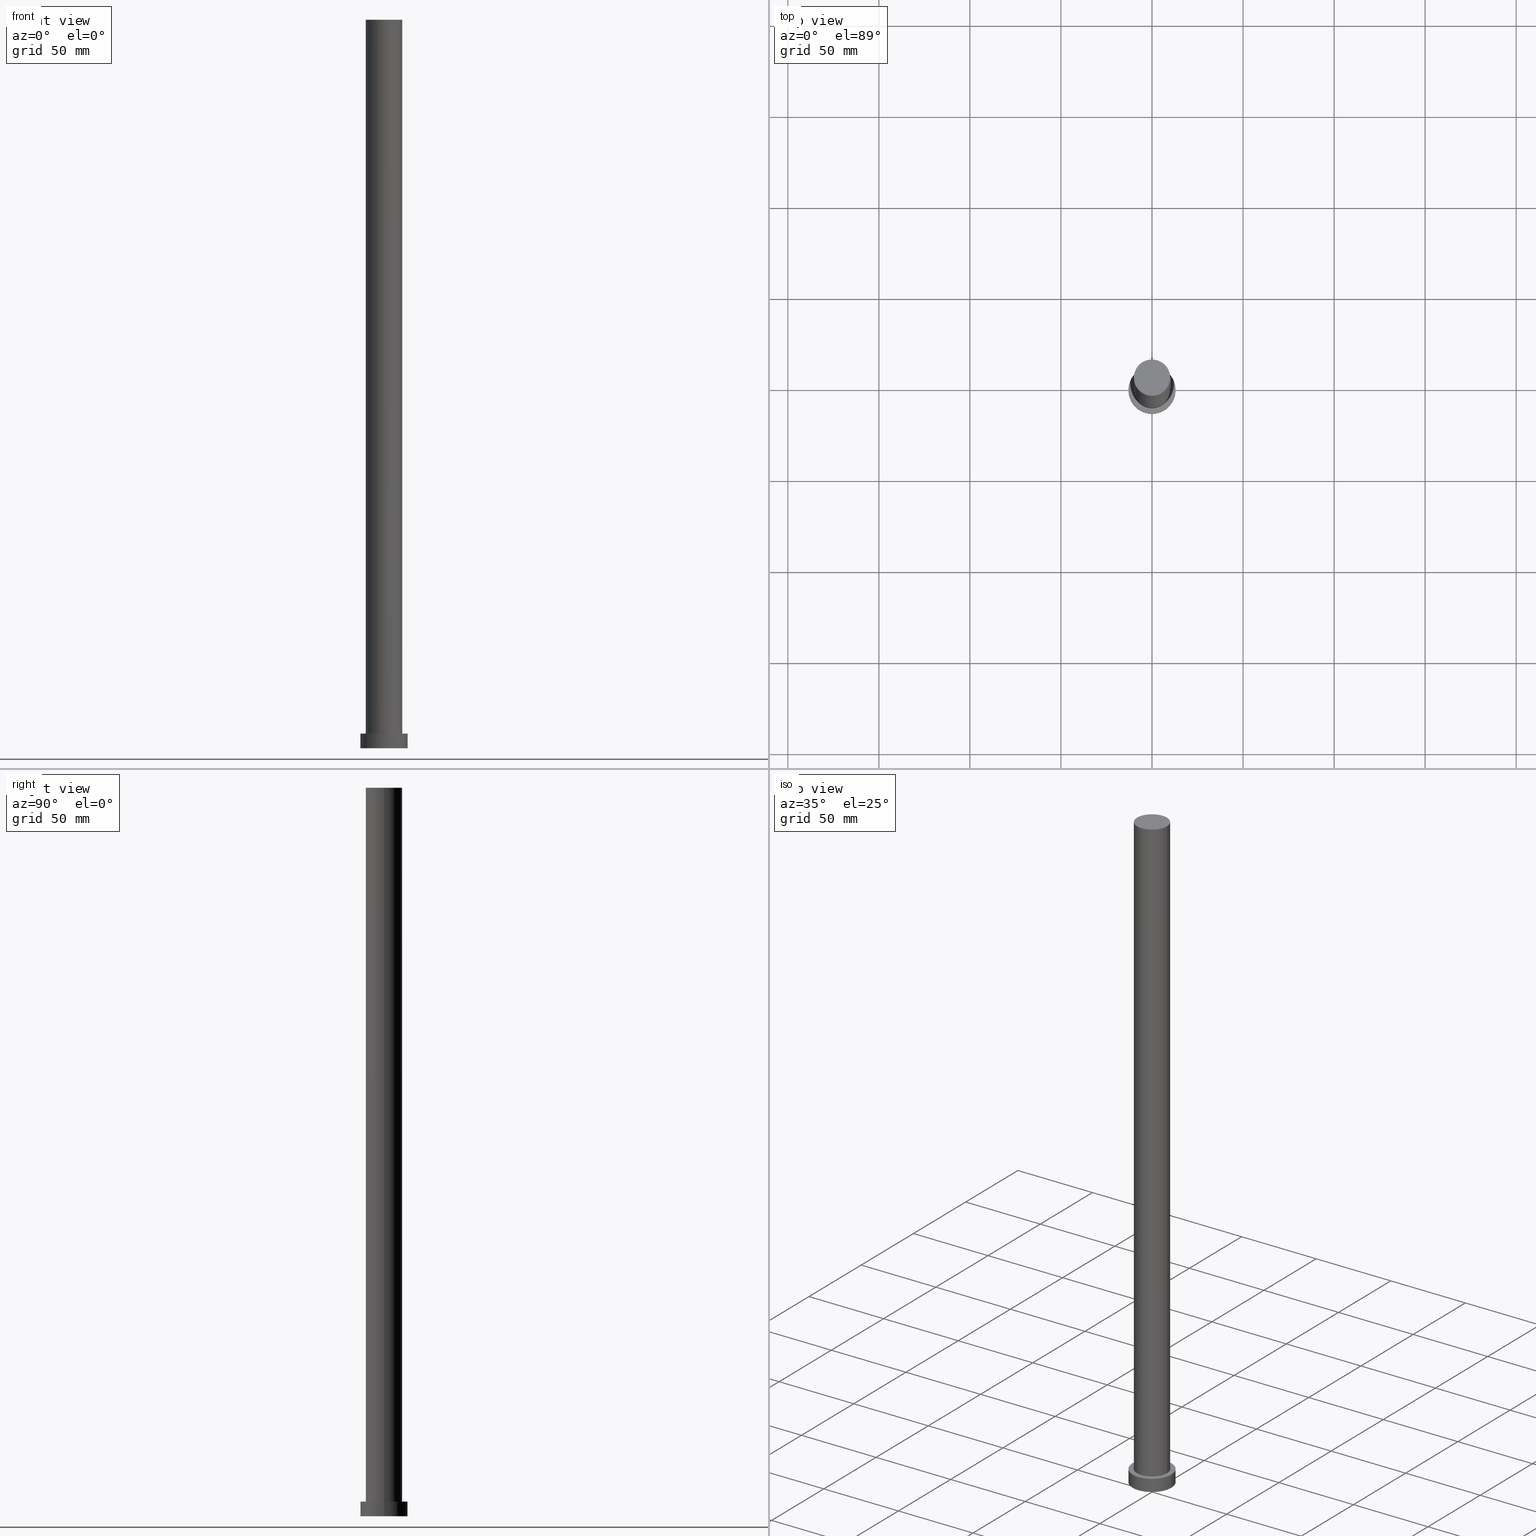
[diagram: canonical four-view strip — front | top / right | iso, engineering-drawing reading convention]
A machine part, canonical four-view strip (front | top / right | iso — engineering-drawing reading convention). The complete STEP part file that produces these views, byte-faithful:
ISO-10303-21;
HEADER;
FILE_DESCRIPTION (( 'STEP AP203' ),
    '1' );
FILE_NAME ('0ef7.STEP',
    '2023-02-13T07:33:34',
    ( '' ),
    ( '' ),
    'SwSTEP 2.0',
    'SolidWorks 2019',
    '' );
FILE_SCHEMA (( 'CONFIG_CONTROL_DESIGN' ));
ENDSEC;

DATA;
#1 = CARTESIAN_POINT ( 'NONE',  ( 0.000000000000000000, 0.000000000000000000, 8.000000000000000000 ) ) ;
#2 = CARTESIAN_POINT ( 'NONE',  ( 0.000000000000000000, 0.000000000000000000, 0.000000000000000000 ) ) ;
#3 = DIRECTION ( 'NONE',  ( -0.000000000000000000, -0.000000000000000000, -1.000000000000000000 ) ) ;
#4 = CARTESIAN_POINT ( 'NONE',  ( 13.00000000000000178, 1.592040838891559293E-15, 0.000000000000000000 ) ) ;
#5 = EDGE_CURVE ( 'NONE', #15, #136, #28, .T. ) ;
#6 = SECURITY_CLASSIFICATION ( '', '', #140 ) ;
#7 = FACE_OUTER_BOUND ( 'NONE', #176, .T. ) ;
#8 = CARTESIAN_POINT ( 'NONE',  ( 0.000000000000000000, 0.000000000000000000, 8.000000000000000000 ) ) ;
#9 = VERTEX_POINT ( 'NONE', #20 ) ;
#10 = EDGE_LOOP ( 'NONE', ( #210, #79, #226, #31 ) ) ;
#11 = EDGE_LOOP ( 'NONE', ( #117, #118 ) ) ;
#12 = AXIS2_PLACEMENT_3D ( 'NONE', #228, #26, #27 ) ;
#13 =( GEOMETRIC_REPRESENTATION_CONTEXT ( 3 ) GLOBAL_UNCERTAINTY_ASSIGNED_CONTEXT ( ( #68 ) ) GLOBAL_UNIT_ASSIGNED_CONTEXT ( ( #74, #114, #109 ) ) REPRESENTATION_CONTEXT ( 'NONE', 'WORKASPACE' ) );
#14 = DATE_AND_TIME ( #182, #52 ) ;
#15 = VERTEX_POINT ( 'NONE', #203 ) ;
#16 = COORDINATED_UNIVERSAL_TIME_OFFSET ( 1, 0, .AHEAD. ) ;
#17 = CC_DESIGN_DATE_AND_TIME_ASSIGNMENT ( #145, #216, ( #6 ) ) ;
#18 = ORIENTED_EDGE ( 'NONE', *, *, #69, .F. ) ;
#19 = AXIS2_PLACEMENT_3D ( 'NONE', #170, #132, #164 ) ;
#20 = CARTESIAN_POINT ( 'NONE',  ( -10.00000000000000000, 0.000000000000000000, 8.000000000000000000 ) ) ;
#21 = EDGE_CURVE ( 'NONE', #200, #9, #255, .T. ) ;
#22 = DIRECTION ( 'NONE',  ( -0.000000000000000000, -0.000000000000000000, -1.000000000000000000 ) ) ;
#23 = EDGE_CURVE ( 'NONE', #136, #15, #152, .T. ) ;
#24 = CARTESIAN_POINT ( 'NONE',  ( 0.000000000000000000, 0.000000000000000000, 400.0000000000000000 ) ) ;
#25 = CARTESIAN_POINT ( 'NONE',  ( 0.000000000000000000, 0.000000000000000000, 0.000000000000000000 ) ) ;
#26 = DIRECTION ( 'NONE',  ( -0.000000000000000000, -0.000000000000000000, -1.000000000000000000 ) ) ;
#27 = DIRECTION ( 'NONE',  ( -1.000000000000000000, 0.000000000000000000, 0.000000000000000000 ) ) ;
#28 = CIRCLE ( 'NONE', #157, 13.00000000000000178 ) ;
#29 = EDGE_CURVE ( 'NONE', #9, #134, #34, .T. ) ;
#30 = ADVANCED_BREP_SHAPE_REPRESENTATION ( '0ef7', ( #115, #65 ), #13 ) ;
#31 = ORIENTED_EDGE ( 'NONE', *, *, #21, .F. ) ;
#32 = ORIENTED_EDGE ( 'NONE', *, *, #60, .F. ) ;
#33 = EDGE_LOOP ( 'NONE', ( #57, #95 ) ) ;
#34 = CIRCLE ( 'NONE', #110, 10.00000000000000000 ) ;
#35 = LOCAL_TIME ( 8, 33, 34.00000000000000000, #156 ) ;
#36 = PERSON_AND_ORGANIZATION ( #199, #94 ) ;
#37 = APPROVAL ( #159, 'NEUR�EN�' ) ;
#38 = VERTEX_POINT ( 'NONE', #233 ) ;
#39 = PERSON_AND_ORGANIZATION ( #199, #94 ) ;
#40 = CARTESIAN_POINT ( 'NONE',  ( 0.000000000000000000, 0.000000000000000000, 8.000000000000000000 ) ) ;
#41 = EDGE_CURVE ( 'NONE', #136, #245, #220, .T. ) ;
#42 = DATE_AND_TIME ( #214, #122 ) ;
#43 = FACE_OUTER_BOUND ( 'NONE', #119, .T. ) ;
#44 = CARTESIAN_POINT ( 'NONE',  ( 0.000000000000000000, 0.000000000000000000, 400.0000000000000000 ) ) ;
#45 = CARTESIAN_POINT ( 'NONE',  ( 0.000000000000000000, 0.000000000000000000, 8.000000000000000000 ) ) ;
#46 = CC_DESIGN_APPROVAL ( #202, ( #193 ) ) ;
#47 = DIRECTION ( 'NONE',  ( -0.000000000000000000, -0.000000000000000000, -1.000000000000000000 ) ) ;
#48 = FACE_OUTER_BOUND ( 'NONE', #139, .T. ) ;
#49 = DIRECTION ( 'NONE',  ( 1.000000000000000000, 0.000000000000000000, -0.000000000000000000 ) ) ;
#50 = CYLINDRICAL_SURFACE ( 'NONE', #207, 13.00000000000000178 ) ;
#51 = LOCAL_TIME ( 8, 33, 34.00000000000000000, #229 ) ;
#52 = LOCAL_TIME ( 8, 33, 34.00000000000000000, #16 ) ;
#53 = DIRECTION ( 'NONE',  ( 1.000000000000000000, 0.000000000000000000, 0.000000000000000000 ) ) ;
#54 = ADVANCED_FACE ( 'NONE', ( #184 ), #217, .T. ) ;
#55 = PERSON_AND_ORGANIZATION ( #199, #94 ) ;
#56 = PRODUCT_DEFINITION_SHAPE ( 'NONE', 'NONE',  #193 ) ;
#57 = ORIENTED_EDGE ( 'NONE', *, *, #23, .T. ) ;
#58 = CIRCLE ( 'NONE', #185, 13.00000000000000178 ) ;
#59 = CALENDAR_DATE ( 2023, 13, 2 ) ;
#60 = EDGE_CURVE ( 'NONE', #15, #137, #107, .T. ) ;
#61 = FACE_BOUND ( 'NONE', #11, .T. ) ;
#62 = COORDINATED_UNIVERSAL_TIME_OFFSET ( 1, 0, .AHEAD. ) ;
#63 = DIRECTION ( 'NONE',  ( 0.000000000000000000, 0.000000000000000000, 1.000000000000000000 ) ) ;
#64 = DATE_TIME_ROLE ( 'creation_date' ) ;
#65 = AXIS2_PLACEMENT_3D ( 'NONE', #148, #188, #239 ) ;
#66 = VECTOR ( 'NONE', #22, 1000.000000000000000 ) ;
#67 = DIRECTION ( 'NONE',  ( 1.000000000000000000, 0.000000000000000000, 0.000000000000000000 ) ) ;
#68 = UNCERTAINTY_MEASURE_WITH_UNIT (LENGTH_MEASURE( 1.000000000000000082E-05 ), #74, 'distance_accuracy_value', 'NONE');
#69 = EDGE_CURVE ( 'NONE', #137, #245, #206, .T. ) ;
#70 = AXIS2_PLACEMENT_3D ( 'NONE', #24, #47, #146 ) ;
#71 = CC_DESIGN_PERSON_AND_ORGANIZATION_ASSIGNMENT ( #232, #126, ( #193 ) ) ;
#72 = PLANE ( 'NONE',  #196 ) ;
#73 = AXIS2_PLACEMENT_3D ( 'NONE', #40, #63, #215 ) ;
#74 =( LENGTH_UNIT ( ) NAMED_UNIT ( * ) SI_UNIT ( .MILLI., .METRE. ) );
#75 = CC_DESIGN_SECURITY_CLASSIFICATION ( #6, ( #130 ) ) ;
#76 = EDGE_CURVE ( 'NONE', #245, #137, #58, .T. ) ;
#77 = SHAPE_DEFINITION_REPRESENTATION ( #56, #30 ) ;
#78 = PERSON_AND_ORGANIZATION_ROLE ( 'classification_officer' ) ;
#79 = ORIENTED_EDGE ( 'NONE', *, *, #160, .T. ) ;
#80 = APPROVAL_DATE_TIME ( #248, #112 ) ;
#81 = MECHANICAL_CONTEXT ( 'NONE', #163, 'mechanical' ) ;
#82 = CARTESIAN_POINT ( 'NONE',  ( -13.00000000000000178, 0.000000000000000000, 8.000000000000000000 ) ) ;
#83 = PERSON_AND_ORGANIZATION ( #199, #94 ) ;
#84 = CARTESIAN_POINT ( 'NONE',  ( 0.000000000000000000, 0.000000000000000000, 0.000000000000000000 ) ) ;
#85 = APPLICATION_CONTEXT ( 'configuration controlled 3d designs of mechanical parts and assemblies' ) ;
#86 = VECTOR ( 'NONE', #128, 1000.000000000000000 ) ;
#87 = DIRECTION ( 'NONE',  ( 1.000000000000000000, 0.000000000000000000, 0.000000000000000000 ) ) ;
#88 = ADVANCED_FACE ( 'NONE', ( #61, #121 ), #141, .T. ) ;
#89 = DIRECTION ( 'NONE',  ( 1.000000000000000000, 0.000000000000000000, 0.000000000000000000 ) ) ;
#90 = LOCAL_TIME ( 8, 33, 34.00000000000000000, #62 ) ;
#91 = DIRECTION ( 'NONE',  ( -1.000000000000000000, 0.000000000000000000, 0.000000000000000000 ) ) ;
#92 = CYLINDRICAL_SURFACE ( 'NONE', #19, 13.00000000000000178 ) ;
#93 = CARTESIAN_POINT ( 'NONE',  ( -10.00000000000000000, 0.000000000000000000, 400.0000000000000000 ) ) ;
#94 = ORGANIZATION ( 'NEUR�EN�', 'NEUR�EN�', '' ) ;
#95 = ORIENTED_EDGE ( 'NONE', *, *, #5, .T. ) ;
#96 = APPROVAL_STATUS ( 'not_yet_approved' ) ;
#97 = ORIENTED_EDGE ( 'NONE', *, *, #29, .T. ) ;
#98 = APPROVAL_ROLE ( '' ) ;
#99 = APPROVAL_DATE_TIME ( #14, #37 ) ;
#100 = ORIENTED_EDGE ( 'NONE', *, *, #23, .F. ) ;
#101 = APPLICATION_PROTOCOL_DEFINITION ( 'international standard', 'config_control_design', 1994, #85 ) ;
#102 = DIRECTION ( 'NONE',  ( 0.000000000000000000, 0.000000000000000000, 1.000000000000000000 ) ) ;
#103 = DESIGN_CONTEXT ( 'detailed design', #85, 'design' ) ;
#104 = CC_DESIGN_DATE_AND_TIME_ASSIGNMENT ( #124, #64, ( #193 ) ) ;
#105 = DIRECTION ( 'NONE',  ( 1.000000000000000000, 0.000000000000000000, 0.000000000000000000 ) ) ;
#106 = CIRCLE ( 'NONE', #241, 10.00000000000000000 ) ;
#107 = LINE ( 'NONE', #186, #66 ) ;
#108 = DIRECTION ( 'NONE',  ( 0.000000000000000000, 0.000000000000000000, 1.000000000000000000 ) ) ;
#109 =( NAMED_UNIT ( * ) SI_UNIT ( $, .STERADIAN. ) SOLID_ANGLE_UNIT ( ) );
#110 = AXIS2_PLACEMENT_3D ( 'NONE', #45, #181, #67 ) ;
#111 = DIRECTION ( 'NONE',  ( 0.000000000000000000, 0.000000000000000000, 1.000000000000000000 ) ) ;
#112 = APPROVAL ( #96, 'NEUR�EN�' ) ;
#113 = CARTESIAN_POINT ( 'NONE',  ( -13.00000000000000178, 0.000000000000000000, 8.000000000000000000 ) ) ;
#114 =( NAMED_UNIT ( * ) PLANE_ANGLE_UNIT ( ) SI_UNIT ( $, .RADIAN. ) );
#115 = MANIFOLD_SOLID_BREP ( 'P�idat vysunut�m3', #235 ) ;
#116 = AXIS2_PLACEMENT_3D ( 'NONE', #243, #242, #89 ) ;
#117 = ORIENTED_EDGE ( 'NONE', *, *, #29, .F. ) ;
#118 = ORIENTED_EDGE ( 'NONE', *, *, #221, .F. ) ;
#119 = EDGE_LOOP ( 'NONE', ( #173, #18 ) ) ;
#120 = APPROVAL_ROLE ( '' ) ;
#121 = FACE_OUTER_BOUND ( 'NONE', #33, .T. ) ;
#122 = LOCAL_TIME ( 8, 33, 34.00000000000000000, #252 ) ;
#123 = VECTOR ( 'NONE', #187, 1000.000000000000000 ) ;
#124 = DATE_AND_TIME ( #142, #90 ) ;
#125 = PLANE ( 'NONE',  #209 ) ;
#126 = PERSON_AND_ORGANIZATION_ROLE ( 'creator' ) ;
#127 = ADVANCED_FACE ( 'NONE', ( #43 ), #125, .F. ) ;
#128 = DIRECTION ( 'NONE',  ( -0.000000000000000000, -0.000000000000000000, -1.000000000000000000 ) ) ;
#129 = CIRCLE ( 'NONE', #116, 10.00000000000000000 ) ;
#130 = PRODUCT_DEFINITION_FORMATION_WITH_SPECIFIED_SOURCE ( 'LIBOVOLN�', '', #227, .NOT_KNOWN. ) ;
#131 = EDGE_CURVE ( 'NONE', #200, #38, #106, .T. ) ;
#132 = DIRECTION ( 'NONE',  ( -0.000000000000000000, -0.000000000000000000, -1.000000000000000000 ) ) ;
#133 = CYLINDRICAL_SURFACE ( 'NONE', #12, 10.00000000000000000 ) ;
#134 = VERTEX_POINT ( 'NONE', #205 ) ;
#135 = VECTOR ( 'NONE', #3, 1000.000000000000000 ) ;
#136 = VERTEX_POINT ( 'NONE', #113 ) ;
#137 = VERTEX_POINT ( 'NONE', #4 ) ;
#138 = PERSON_AND_ORGANIZATION_ROLE ( 'creator' ) ;
#139 = EDGE_LOOP ( 'NONE', ( #175, #247, #251, #97 ) ) ;
#140 = SECURITY_CLASSIFICATION_LEVEL ( 'unclassified' ) ;
#141 = PLANE ( 'NONE',  #73 ) ;
#142 = CALENDAR_DATE ( 2023, 13, 2 ) ;
#143 = DIRECTION ( 'NONE',  ( 0.000000000000000000, 0.000000000000000000, 1.000000000000000000 ) ) ;
#144 = ADVANCED_FACE ( 'NONE', ( #225 ), #72, .T. ) ;
#145 = DATE_AND_TIME ( #59, #35 ) ;
#146 = DIRECTION ( 'NONE',  ( -1.000000000000000000, 0.000000000000000000, 0.000000000000000000 ) ) ;
#147 = CC_DESIGN_APPROVAL ( #37, ( #130 ) ) ;
#148 = CARTESIAN_POINT ( 'NONE',  ( 0.000000000000000000, 0.000000000000000000, 0.000000000000000000 ) ) ;
#149 = CC_DESIGN_PERSON_AND_ORGANIZATION_ASSIGNMENT ( #83, #138, ( #130 ) ) ;
#150 = FACE_OUTER_BOUND ( 'NONE', #237, .T. ) ;
#151 = AXIS2_PLACEMENT_3D ( 'NONE', #8, #111, #189 ) ;
#152 = CIRCLE ( 'NONE', #177, 13.00000000000000178 ) ;
#153 = LINE ( 'NONE', #192, #86 ) ;
#154 = APPROVAL_ROLE ( '' ) ;
#155 = CC_DESIGN_PERSON_AND_ORGANIZATION_ASSIGNMENT ( #234, #78, ( #6 ) ) ;
#156 = COORDINATED_UNIVERSAL_TIME_OFFSET ( 1, 0, .AHEAD. ) ;
#157 = AXIS2_PLACEMENT_3D ( 'NONE', #213, #219, #87 ) ;
#158 = CIRCLE ( 'NONE', #151, 10.00000000000000000 ) ;
#159 = APPROVAL_STATUS ( 'not_yet_approved' ) ;
#160 = EDGE_CURVE ( 'NONE', #38, #134, #153, .T. ) ;
#161 = CARTESIAN_POINT ( 'NONE',  ( -10.00000000000000000, 0.000000000000000000, 400.0000000000000000 ) ) ;
#162 = PERSON_AND_ORGANIZATION_ROLE ( 'design_supplier' ) ;
#163 = APPLICATION_CONTEXT ( 'configuration controlled 3d designs of mechanical parts and assemblies' ) ;
#164 = DIRECTION ( 'NONE',  ( -1.000000000000000000, 0.000000000000000000, 0.000000000000000000 ) ) ;
#165 = APPROVAL_PERSON_ORGANIZATION ( #55, #202, #98 ) ;
#166 = CARTESIAN_POINT ( 'NONE',  ( 0.000000000000000000, 0.000000000000000000, 8.000000000000000000 ) ) ;
#167 = AXIS2_PLACEMENT_3D ( 'NONE', #25, #102, #238 ) ;
#168 = ADVANCED_FACE ( 'NONE', ( #48 ), #133, .T. ) ;
#169 = CARTESIAN_POINT ( 'NONE',  ( -13.00000000000000178, 0.000000000000000000, 0.000000000000000000 ) ) ;
#170 = CARTESIAN_POINT ( 'NONE',  ( 0.000000000000000000, 0.000000000000000000, 8.000000000000000000 ) ) ;
#171 = ORIENTED_EDGE ( 'NONE', *, *, #69, .T. ) ;
#172 = ORIENTED_EDGE ( 'NONE', *, *, #174, .T. ) ;
#173 = ORIENTED_EDGE ( 'NONE', *, *, #76, .F. ) ;
#174 = EDGE_CURVE ( 'NONE', #38, #200, #129, .T. ) ;
#175 = ORIENTED_EDGE ( 'NONE', *, *, #160, .F. ) ;
#176 = EDGE_LOOP ( 'NONE', ( #32, #100, #198, #178 ) ) ;
#177 = AXIS2_PLACEMENT_3D ( 'NONE', #1, #143, #105 ) ;
#178 = ORIENTED_EDGE ( 'NONE', *, *, #76, .T. ) ;
#179 = CC_DESIGN_PERSON_AND_ORGANIZATION_ASSIGNMENT ( #254, #250, ( #227 ) ) ;
#180 = CALENDAR_DATE ( 2023, 13, 2 ) ;
#181 = DIRECTION ( 'NONE',  ( 0.000000000000000000, 0.000000000000000000, 1.000000000000000000 ) ) ;
#182 = CALENDAR_DATE ( 2023, 13, 2 ) ;
#183 = DIRECTION ( 'NONE',  ( 0.000000000000000000, 0.000000000000000000, 1.000000000000000000 ) ) ;
#184 = FACE_OUTER_BOUND ( 'NONE', #10, .T. ) ;
#185 = AXIS2_PLACEMENT_3D ( 'NONE', #2, #108, #231 ) ;
#186 = CARTESIAN_POINT ( 'NONE',  ( 13.00000000000000178, 1.592040838891559293E-15, 8.000000000000000000 ) ) ;
#187 = DIRECTION ( 'NONE',  ( -0.000000000000000000, -0.000000000000000000, -1.000000000000000000 ) ) ;
#188 = DIRECTION ( 'NONE',  ( 0.000000000000000000, 0.000000000000000000, 1.000000000000000000 ) ) ;
#189 = DIRECTION ( 'NONE',  ( 1.000000000000000000, 0.000000000000000000, 0.000000000000000000 ) ) ;
#190 = DIRECTION ( 'NONE',  ( -0.000000000000000000, -0.000000000000000000, -1.000000000000000000 ) ) ;
#191 = ORIENTED_EDGE ( 'NONE', *, *, #60, .T. ) ;
#192 = CARTESIAN_POINT ( 'NONE',  ( 10.00000000000000000, 1.224646799147353256E-15, 400.0000000000000000 ) ) ;
#193 = PRODUCT_DEFINITION ( 'NEZN�M�', '', #130, #103 ) ;
#194 = APPROVAL_PERSON_ORGANIZATION ( #201, #37, #154 ) ;
#195 = ORIENTED_EDGE ( 'NONE', *, *, #5, .F. ) ;
#196 = AXIS2_PLACEMENT_3D ( 'NONE', #208, #224, #49 ) ;
#197 = APPROVAL_DATE_TIME ( #42, #202 ) ;
#198 = ORIENTED_EDGE ( 'NONE', *, *, #41, .T. ) ;
#199 = PERSON ( 'NEUR�EN�', 'NEUR�EN�', 'NEUR�EN�', ('NEUR�EN�'), ('NEUR�EN�'), ('NEUR�EN�') ) ;
#200 = VERTEX_POINT ( 'NONE', #93 ) ;
#201 = PERSON_AND_ORGANIZATION ( #199, #94 ) ;
#202 = APPROVAL ( #212, 'NEUR�EN�' ) ;
#203 = CARTESIAN_POINT ( 'NONE',  ( 13.00000000000000178, 1.592040838891559293E-15, 8.000000000000000000 ) ) ;
#204 = DIRECTION ( 'NONE',  ( 0.000000000000000000, 0.000000000000000000, 1.000000000000000000 ) ) ;
#205 = CARTESIAN_POINT ( 'NONE',  ( 10.00000000000000000, 1.224646799147353256E-15, 8.000000000000000000 ) ) ;
#206 = CIRCLE ( 'NONE', #167, 13.00000000000000178 ) ;
#207 = AXIS2_PLACEMENT_3D ( 'NONE', #166, #190, #91 ) ;
#208 = CARTESIAN_POINT ( 'NONE',  ( 0.000000000000000000, 0.000000000000000000, 400.0000000000000000 ) ) ;
#209 = AXIS2_PLACEMENT_3D ( 'NONE', #84, #183, #236 ) ;
#210 = ORIENTED_EDGE ( 'NONE', *, *, #174, .F. ) ;
#211 = ORIENTED_EDGE ( 'NONE', *, *, #41, .F. ) ;
#212 = APPROVAL_STATUS ( 'not_yet_approved' ) ;
#213 = CARTESIAN_POINT ( 'NONE',  ( 0.000000000000000000, 0.000000000000000000, 8.000000000000000000 ) ) ;
#214 = CALENDAR_DATE ( 2023, 13, 2 ) ;
#215 = DIRECTION ( 'NONE',  ( 1.000000000000000000, 0.000000000000000000, -0.000000000000000000 ) ) ;
#216 = DATE_TIME_ROLE ( 'classification_date' ) ;
#217 = CYLINDRICAL_SURFACE ( 'NONE', #70, 10.00000000000000000 ) ;
#218 = ADVANCED_FACE ( 'NONE', ( #150 ), #92, .T. ) ;
#219 = DIRECTION ( 'NONE',  ( 0.000000000000000000, 0.000000000000000000, 1.000000000000000000 ) ) ;
#220 = LINE ( 'NONE', #82, #135 ) ;
#221 = EDGE_CURVE ( 'NONE', #134, #9, #158, .T. ) ;
#222 = APPLICATION_PROTOCOL_DEFINITION ( 'international standard', 'config_control_design', 1994, #163 ) ;
#223 = PRODUCT_RELATED_PRODUCT_CATEGORY ( 'detail', '', ( #227 ) ) ;
#224 = DIRECTION ( 'NONE',  ( 0.000000000000000000, 0.000000000000000000, 1.000000000000000000 ) ) ;
#225 = FACE_OUTER_BOUND ( 'NONE', #249, .T. ) ;
#226 = ORIENTED_EDGE ( 'NONE', *, *, #221, .T. ) ;
#227 = PRODUCT ( '0ef7', '0ef7', '', ( #81 ) ) ;
#228 = CARTESIAN_POINT ( 'NONE',  ( 0.000000000000000000, 0.000000000000000000, 400.0000000000000000 ) ) ;
#229 = COORDINATED_UNIVERSAL_TIME_OFFSET ( 1, 0, .AHEAD. ) ;
#230 = ORIENTED_EDGE ( 'NONE', *, *, #131, .T. ) ;
#231 = DIRECTION ( 'NONE',  ( 1.000000000000000000, 0.000000000000000000, 0.000000000000000000 ) ) ;
#232 = PERSON_AND_ORGANIZATION ( #199, #94 ) ;
#233 = CARTESIAN_POINT ( 'NONE',  ( 10.00000000000000000, 1.224646799147353256E-15, 400.0000000000000000 ) ) ;
#234 = PERSON_AND_ORGANIZATION ( #199, #94 ) ;
#235 = CLOSED_SHELL ( 'NONE', ( #54, #218, #244, #88, #127, #168, #144 ) ) ;
#236 = DIRECTION ( 'NONE',  ( 1.000000000000000000, 0.000000000000000000, -0.000000000000000000 ) ) ;
#237 = EDGE_LOOP ( 'NONE', ( #195, #191, #171, #211 ) ) ;
#238 = DIRECTION ( 'NONE',  ( 1.000000000000000000, 0.000000000000000000, 0.000000000000000000 ) ) ;
#239 = DIRECTION ( 'NONE',  ( 1.000000000000000000, 0.000000000000000000, 0.000000000000000000 ) ) ;
#240 = CC_DESIGN_PERSON_AND_ORGANIZATION_ASSIGNMENT ( #39, #162, ( #130 ) ) ;
#241 = AXIS2_PLACEMENT_3D ( 'NONE', #44, #204, #53 ) ;
#242 = DIRECTION ( 'NONE',  ( 0.000000000000000000, 0.000000000000000000, 1.000000000000000000 ) ) ;
#243 = CARTESIAN_POINT ( 'NONE',  ( 0.000000000000000000, 0.000000000000000000, 400.0000000000000000 ) ) ;
#244 = ADVANCED_FACE ( 'NONE', ( #7 ), #50, .T. ) ;
#245 = VERTEX_POINT ( 'NONE', #169 ) ;
#246 = APPROVAL_PERSON_ORGANIZATION ( #36, #112, #120 ) ;
#247 = ORIENTED_EDGE ( 'NONE', *, *, #131, .F. ) ;
#248 = DATE_AND_TIME ( #180, #51 ) ;
#249 = EDGE_LOOP ( 'NONE', ( #230, #172 ) ) ;
#250 = PERSON_AND_ORGANIZATION_ROLE ( 'design_owner' ) ;
#251 = ORIENTED_EDGE ( 'NONE', *, *, #21, .T. ) ;
#252 = COORDINATED_UNIVERSAL_TIME_OFFSET ( 1, 0, .AHEAD. ) ;
#253 = CC_DESIGN_APPROVAL ( #112, ( #6 ) ) ;
#254 = PERSON_AND_ORGANIZATION ( #199, #94 ) ;
#255 = LINE ( 'NONE', #161, #123 ) ;
ENDSEC;
END-ISO-10303-21;
